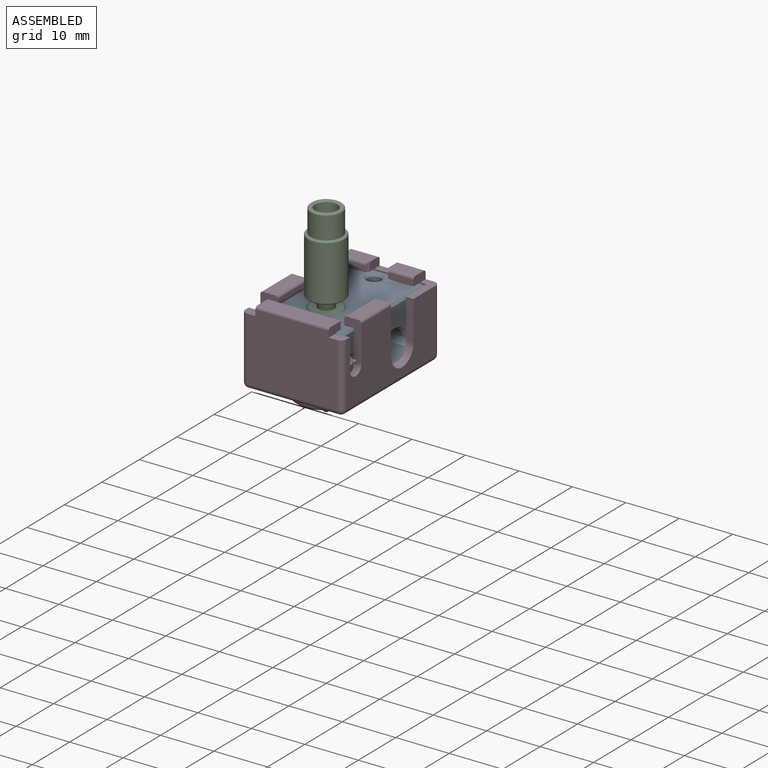
[diagram: assembled view]
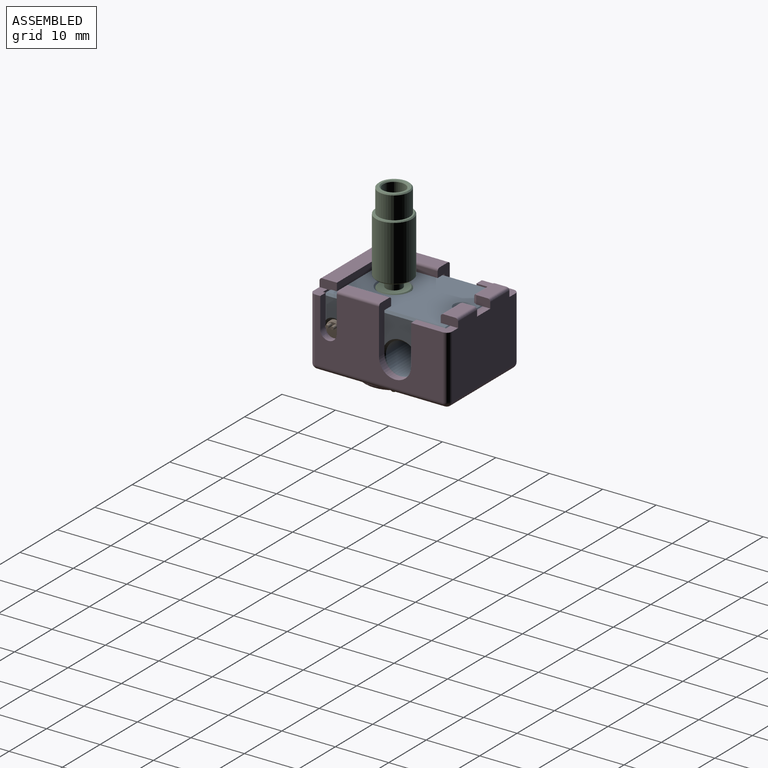
[diagram: assembled view, second angle]
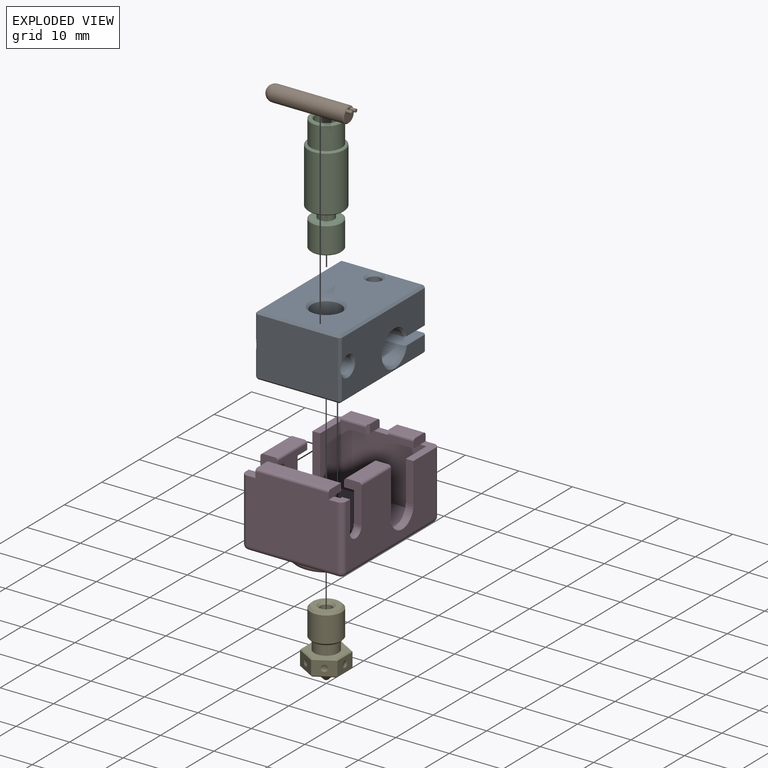
[diagram: exploded view]
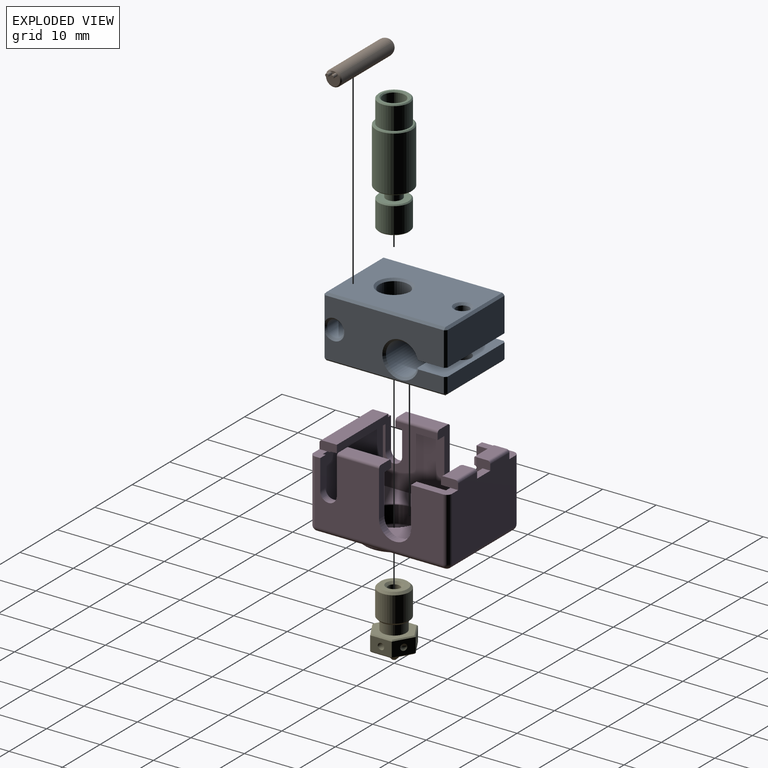
[diagram: exploded view, second angle]
ASSEMBLY  parts=5 mates=4
PART A: 46 faces, bbox 16x23x11.5 mm
  f0: cylinder r=1.55mm len=15.21mm, axis (-1,0,0), area 142.7mm2, adj f14,f22,f26
  f1: plane 16.02x5.64mm, normal (0,0,-1), area 84.9mm2, adj f2,f8,f9,f10,f12,f15,f17,f39
  f2: cylinder r=3mm len=15.21mm, axis (-1,0,0), area 262.9mm2, adj f1,f3,f39,f40
  f3: plane 16.02x5.62mm, normal (0,0,1), area 81.5mm2, adj f2,f4,f9,f10,f13,f32,f38,f39
  f4: plane 15.21x2.85mm, normal (0,-1,0), area 43.3mm2, adj f3,f32,f36,f38
  f5: plane 22.22x15.21mm, normal (0,0,-1), area 285.7mm2, adj f30,f31,f35,f36,f43,f44,f45
  f6: plane 15.21x10.74mm, normal (0,1,0), area 163.4mm2, adj f24,f25,f29,f30
  f7: plane 22.22x15.21mm, normal (0,0,1), area 298.2mm2, adj f18,f19,f23,f24,f41,f42
  f8: plane 15.21x6.34mm, normal (0,-1,0), area 96.4mm2, adj f1,f15,f17,f18
  f9: plane 22.22x10.74mm, normal (1,0,0), area 183.4mm2, adj f1,f3,f17,f23,f26,f29,f35,f38
  f10: plane 22.22x10.74mm, normal (-1,0,0), area 183.4mm2, adj f1,f3,f15,f19,f22,f25,f31,f32
  f11: cylinder r=2.75mm len=10.74mm, axis (0,0,-1), area 185.6mm2, adj f42,f45
  f12: cylinder r=1.25mm len=6.34mm, axis (0,0,-1), area 49.8mm2, adj f1,f41
  f13: cylinder r=1.6mm len=3.2mm, axis (0,0,-1), area 28.7mm2, adj f3,f44
  f14: cylinder r=1.25mm len=4.45mm, axis (0,0,-1), area 32.3mm2, adj f0,f43
  f15: plane 6.34x0.4mm, normal (-0.71,-0.71,0), area 3.6mm2, adj f1,f8,f10,f16
  f16: plane 0.4x0.4mm, normal (-0.58,-0.58,0.58), area 0.1mm2, adj f15,f18,f19
  f17: plane 6.34x0.4mm, normal (0.71,-0.71,0), area 3.6mm2, adj f1,f8,f9,f20
  f18: plane 15.21x0.4mm, normal (0,-0.71,0.71), area 8.6mm2, adj f7,f8,f16,f20
  f19: plane 22.22x0.4mm, normal (-0.71,0,0.71), area 12.6mm2, adj f7,f10,f16,f21
  f20: plane 0.4x0.4mm, normal (0.58,-0.58,0.58), area 0.1mm2, adj f17,f18,f23
  f21: plane 0.4x0.4mm, normal (-0.58,0.58,0.58), area 0.1mm2, adj f19,f24,f25
  f22: cone r=1.95mm half-angle=45deg, axis (-1,0,0), area 5.9mm2, adj f0,f10,f25
  f23: plane 22.22x0.4mm, normal (0.71,0,0.71), area 12.6mm2, adj f7,f9,f20,f27
  f24: plane 15.21x0.4mm, normal (0,0.71,0.71), area 8.6mm2, adj f6,f7,f21,f27
  f25: plane 10.74x0.4mm, normal (-0.71,0.71,0), area 5.8mm2, adj f6,f10,f21,f22,f28
  f26: cone r=1.55mm half-angle=45deg, axis (1,0,0), area 5.9mm2, adj f0,f9,f29
  f27: plane 0.4x0.4mm, normal (0.58,0.58,0.58), area 0.1mm2, adj f23,f24,f29
  f28: plane 0.4x0.4mm, normal (-0.58,0.58,-0.58), area 0.1mm2, adj f25,f30,f31
  f29: plane 10.74x0.4mm, normal (0.71,0.71,0), area 5.8mm2, adj f6,f9,f26,f27,f33
  f30: plane 15.21x0.4mm, normal (0,0.71,-0.71), area 8.6mm2, adj f5,f6,f28,f33
  f31: plane 22.22x0.4mm, normal (-0.71,0,-0.71), area 12.6mm2, adj f5,f10,f28,f34
  f32: plane 2.85x0.4mm, normal (-0.71,-0.71,0), area 1.6mm2, adj f3,f4,f10,f34
  f33: plane 0.4x0.4mm, normal (0.58,0.58,-0.58), area 0.1mm2, adj f29,f30,f35
  f34: plane 0.4x0.4mm, normal (-0.58,-0.58,-0.58), area 0.1mm2, adj f31,f32,f36
  f35: plane 22.22x0.4mm, normal (0.71,0,-0.71), area 12.6mm2, adj f5,f9,f33,f37
  f36: plane 15.21x0.4mm, normal (0,-0.71,-0.71), area 8.6mm2, adj f4,f5,f34,f37
  f37: plane 0.4x0.4mm, normal (0.58,-0.58,-0.58), area 0.1mm2, adj f35,f36,f38
  f38: plane 2.85x0.4mm, normal (0.71,-0.71,0), area 1.6mm2, adj f3,f4,f9,f37
  f39: cone r=3mm half-angle=45deg, axis (1,0,0), area 10.5mm2, adj f1,f2,f3,f9
  f40: cone r=3.4mm half-angle=45deg, axis (-1,0,0), area 10.5mm2, adj f1,f2,f3,f10
  f41: cone r=1.25mm half-angle=45deg, axis (0,0,1), area 5.2mm2, adj f7,f12
  f42: cone r=2.75mm half-angle=45deg, axis (0,0,1), area 10.5mm2, adj f7,f11
  f43: cone r=1.25mm half-angle=45deg, axis (0,0,-1), area 5.2mm2, adj f5,f14
  f44: cone r=1.6mm half-angle=45deg, axis (0,0,-1), area 6.4mm2, adj f5,f13
  f45: cone r=2.75mm half-angle=45deg, axis (0,0,-1), area 10.5mm2, adj f5,f11
PART B: 8 faces, bbox 3x3x16.3 mm
  f0: cylinder r=1.5mm len=13.6mm, axis (0,0,-1), area 128.2mm2, adj f2,f7
  f1: plane 2.6x2.6mm, normal (0,0,-1), area 4.7mm2, adj f3,f5,f7
  f2: sphere r=1.5mm, area 14.1mm2, adj f0
  f3: cylinder r=0.3mm len=1mm, axis (0,0,1), area 1.9mm2, adj f1,f4
  f4: plane 0.6x0.6mm, normal (0,0,-1), area 0.3mm2, adj f3
  f5: cylinder r=0.3mm len=1mm, axis (0,0,1), area 1.9mm2, adj f1,f6
  f6: plane 0.6x0.6mm, normal (0,0,-1), area 0.3mm2, adj f5
  f7: cone r=1.5mm half-angle=45deg, axis (0,0,1), area 2.5mm2, adj f0,f1
PART C: 18 faces, bbox 6.8x6.8x22.1 mm
  f0: cylinder r=1.05mm len=17.11mm, axis (0,0,1), area 112.9mm2, adj f8,f11
  f1: cylinder r=2.9mm len=5.8mm, axis (0,0,-1), area 76.7mm2, adj f4,f17
  f2: plane 5.4x5.4mm, normal (0,0,1), area 7mm2, adj f12,f17
  f3: cylinder r=3.4mm len=10.3mm, axis (0,0,-1), area 220mm2, adj f13,f14
  f4: plane 6.4x6.4mm, normal (0,0,1), area 5.7mm2, adj f1,f13
  f5: plane 6.4x6.4mm, normal (0,0,-1), area 25.1mm2, adj f7,f14
  f6: plane 5.4x5.4mm, normal (0,0,1), area 15.8mm2, adj f7,f16
  f7: cylinder r=1.5mm len=3mm, axis (0,0,-1), area 17mm2, adj f5,f6
  f8: plane 5.4x5.4mm, normal (0,0,-1), area 19.4mm2, adj f0,f15
  f9: cylinder r=2.9mm len=5.8mm, axis (0,0,-1), area 87.5mm2, adj f15,f16
  f10: cylinder r=2.05mm len=4.2mm, axis (0,0,1), area 54.1mm2, adj f11,f12
  f11: cone r=0mm half-angle=59deg, axis (0,0,1), area 11.4mm2, adj f0,f10
  f12: cone r=2.05mm half-angle=45deg, axis (0,0,1), area 3.8mm2, adj f2,f10
  f13: cone r=3.2mm half-angle=45deg, axis (0,0,-1), area 5.9mm2, adj f3,f4
  f14: cone r=3.4mm half-angle=45deg, axis (0,0,1), area 5.9mm2, adj f3,f5
  f15: cone r=2.9mm half-angle=45deg, axis (0,0,1), area 5mm2, adj f8,f9
  f16: cone r=2.7mm half-angle=45deg, axis (0,0,-1), area 5mm2, adj f6,f9
  f17: cone r=2.7mm half-angle=45deg, axis (0,0,-1), area 5mm2, adj f1,f2
PART D: 107 faces, bbox 18.9x25.9x17.7 mm
  f0: plane 6.97x2.6mm, normal (0,0,1), area 11.6mm2, adj f1,f7,f17,f26,f40,f49,f95
  f1: plane 23.92x12.94mm, normal (1,0,0), area 212.2mm2, adj f0,f13,f26,f32,f35,f37,f39,f92
  f2: plane 23.92x12.94mm, normal (-1,0,0), area 212.2mm2, adj f6,f14,f24,f28,f29,f36,f42,f88
  f3: plane 3.25x1.6mm, normal (-1,0,0), area 5mm2, adj f4,f14,f16,f18,f44,f96,f97,f105
  f4: plane 13.71x1.45mm, normal (0,1,0), area 19.9mm2, adj f3,f5,f18,f96
  f5: plane 3.25x1.6mm, normal (1,0,0), area 5mm2, adj f4,f13,f16,f18,f44,f96,f97,f105
  f6: plane 6.97x2.6mm, normal (0,0,1), area 11.6mm2, adj f2,f8,f17,f24,f41,f49,f91
  f7: plane 23.02x11.54mm, normal (-1,0,0), area 183.3mm2, adj f0,f13,f37,f39,f45,f48,f49,f51
  f8: plane 23.02x11.54mm, normal (1,0,0), area 183.3mm2, adj f6,f14,f36,f42,f47,f48,f49,f53
  f9: plane 4.75x1.1mm, normal (0,-1,0), area 5.2mm2, adj f40,f71,f79,f100
  f10: plane 2.64x1.6mm, normal (-1,0,0), area 4.2mm2, adj f15,f17,f22,f71,f79,f104
  f11: plane 2.64x1.6mm, normal (1,0,0), area 4.2mm2, adj f15,f17,f20,f46,f82,f98
  f12: plane 4.75x1.1mm, normal (0,-1,0), area 5.2mm2, adj f41,f46,f82,f101
  f13: plane 2.6x1.95mm, normal (0,0,1), area 4.3mm2, adj f1,f5,f7,f16,f35,f48,f93
  f14: plane 2.6x1.95mm, normal (0,0,1), area 4.3mm2, adj f2,f3,f8,f16,f29,f48,f89
  f15: plane 3.51x1.45mm, normal (0,0,1), area 5.1mm2, adj f10,f11,f17,f49
  f16: plane 16.91x12.94mm, normal (0,-1,0), area 215.3mm2, adj f3,f5,f13,f14,f29,f33,f35,f105
  f17: plane 16.91x12.94mm, normal (0,1,0), area 211.4mm2, adj f0,f6,f10,f11,f15,f24,f26,f27
  f18: plane 13.71x2.75mm, normal (0,0,1), area 37.7mm2, adj f3,f4,f5,f105
  f19: plane 7.9x2.25mm, normal (0,0,1), area 17.8mm2, adj f37,f39,f99,f106
  f20: plane 5.1x2.25mm, normal (0,0,1), area 11.5mm2, adj f11,f41,f82,f98,f101
  f21: plane 7.9x2.25mm, normal (0,0,1), area 17.8mm2, adj f36,f42,f102,f103
  f22: plane 5.1x2.25mm, normal (0,0,1), area 11.5mm2, adj f10,f40,f79,f100,f104
  f23: plane 23.92x16.91mm, normal (0,0,-1), area 227.9mm2, adj f27,f28,f32,f33,f73,f78
  f24: cylinder r=1mm len=11.84mm, axis (0,0,-1), area 18.6mm2, adj f2,f6,f17,f25
  f25: sphere r=1mm, area 1.6mm2, adj f24,f27,f28
  f26: cylinder r=1mm len=11.84mm, axis (0,0,1), area 18.6mm2, adj f0,f1,f17,f30
  f27: cylinder r=1mm len=16.91mm, axis (-1,0,0), area 26.6mm2, adj f17,f23,f25,f30
  f28: cylinder r=1mm len=23.92mm, axis (0,-1,0), area 37.6mm2, adj f2,f23,f25,f31
  f29: cylinder r=1mm len=11.84mm, axis (0,0,1), area 18.6mm2, adj f2,f14,f16,f31
  f30: sphere r=1mm, area 1.6mm2, adj f26,f27,f32
  f31: sphere r=1mm, area 1.6mm2, adj f28,f29,f33
  f32: cylinder r=1mm len=23.92mm, axis (0,1,0), area 37.6mm2, adj f1,f23,f30,f34
  f33: cylinder r=1mm len=16.91mm, axis (1,0,0), area 26.6mm2, adj f16,f23,f31,f34
  f34: sphere r=1mm, area 1.6mm2, adj f32,f33,f35
  f35: cylinder r=1mm len=11.84mm, axis (0,0,-1), area 18.6mm2, adj f1,f13,f16,f34
  f36: plane 7.22x3.25mm, normal (0,-1,0), area 13.2mm2, adj f2,f8,f21,f43,f47,f88,f102,f103
  f37: plane 7.22x3.25mm, normal (0,-1,0), area 13.2mm2, adj f1,f7,f19,f38,f45,f92,f99,f106
  f38: plane 7.9x1.1mm, normal (-1,0,0), area 8.7mm2, adj f37,f39,f45,f99
  f39: plane 8.99x3.25mm, normal (0,1,0), area 15.8mm2, adj f1,f7,f19,f38,f45,f94,f99,f106
  f40: plane 3.25x1.6mm, normal (1,0,0), area 5.1mm2, adj f0,f9,f17,f22,f71,f100,f104
  f41: plane 3.25x1.6mm, normal (-1,0,0), area 5.1mm2, adj f6,f12,f17,f20,f46,f98,f101
  f42: plane 8.99x3.25mm, normal (0,1,0), area 15.8mm2, adj f2,f8,f21,f43,f47,f90,f102,f103
  f43: plane 7.9x1.1mm, normal (1,0,0), area 8.7mm2, adj f36,f42,f47,f102
  f44: plane 13.71x0.5mm, normal (0,0,-1), area 3.1mm2, adj f3,f5,f48,f57,f58,f59,f97
  f45: plane 7.9x1.8mm, normal (0,0,-1), area 12.5mm2, adj f7,f37,f38,f39,f60,f61,f62
  f46: plane 5.1x1.8mm, normal (0,0,-1), area 8.3mm2, adj f11,f12,f41,f49,f66,f67,f68,f82
  f47: plane 7.9x1.8mm, normal (0,0,-1), area 12.5mm2, adj f8,f36,f42,f43,f56,f69,f70
  f48: plane 16.01x11.54mm, normal (0,1,0), area 184mm2, adj f7,f8,f13,f14,f44,f50,f55,f57
  f49: plane 16.01x11.54mm, normal (0,-1,0), area 183mm2, adj f0,f6,f7,f8,f15,f46,f52,f54
  f50: plane 10.81x0.35mm, normal (0,0,-1), area 3.8mm2, adj f48,f57,f58,f59
  f51: plane 5x0.35mm, normal (0,0,-1), area 1.7mm2, adj f7,f60,f61,f62
  f52: plane 2.2x0.35mm, normal (0,0,-1), area 0.8mm2, adj f49,f66,f67,f68
  f53: plane 5x0.35mm, normal (0,0,-1), area 1.8mm2, adj f8,f56,f69,f70
  f54: plane 2.2x0.35mm, normal (0,0,-1), area 0.8mm2, adj f49,f63,f64,f65
  f55: plane 23.02x16.01mm, normal (0,0,1), area 289mm2, adj f7,f8,f48,f49,f81,f86
  f56: plane 0.35x0.15mm, normal (0,1,0), area 0.1mm2, adj f8,f47,f53,f70
  f57: plane 0.35x0.15mm, normal (1,0,0), area 0.1mm2, adj f44,f48,f50,f58
  f58: plane 10.81x0.15mm, normal (0,-1,0), area 1.6mm2, adj f44,f50,f57,f59
  f59: plane 0.35x0.15mm, normal (-1,0,0), area 0.1mm2, adj f44,f48,f50,f58
  f60: plane 0.35x0.15mm, normal (0,1,0), area 0.1mm2, adj f7,f45,f51,f61
  f61: plane 5x0.15mm, normal (1,0,0), area 0.7mm2, adj f45,f51,f60,f62
  f62: plane 0.35x0.15mm, normal (0,-1,0), area 0.1mm2, adj f7,f45,f51,f61
  f63: plane 0.35x0.15mm, normal (-1,0,0), area 0.1mm2, adj f49,f54,f64,f71
  f64: plane 2.2x0.15mm, normal (0,1,0), area 0.3mm2, adj f54,f63,f65,f71
  f65: plane 0.35x0.15mm, normal (1,0,0), area 0.1mm2, adj f49,f54,f64,f71
  f66: plane 0.35x0.15mm, normal (-1,0,0), area 0.1mm2, adj f46,f49,f52,f67
  f67: plane 2.2x0.15mm, normal (0,1,0), area 0.3mm2, adj f46,f52,f66,f68
  f68: plane 0.35x0.15mm, normal (1,0,0), area 0.1mm2, adj f46,f49,f52,f67
  f69: plane 0.35x0.15mm, normal (0,-1,0), area 0.1mm2, adj f8,f47,f53,f70
  f70: plane 5x0.15mm, normal (-1,0,0), area 0.7mm2, adj f47,f53,f56,f69
  f71: plane 5.1x1.8mm, normal (0,0,-1), area 8.3mm2, adj f9,f10,f40,f49,f63,f64,f65,f79
  f72: plane 4.14x4.14mm, normal (0,0,-1), area 13.5mm2, adj f73
  f73: torus R=2.07mm, axis (0,0,-1), area 22.8mm2, adj f23,f72
  f74: cylinder r=5.85mm len=11.7mm, axis (0,0,1), area 15.6mm2, adj f77,f78
  f75: plane 1.41x1.41mm, normal (0,0,-1), area 0.8mm2, adj f76,f85
  f76: cone r=5.85mm half-angle=79deg, axis (0,0,1), area 79.7mm2, adj f75,f77
  f77: torus R=4.85mm, axis (0,0,-1), area 48.2mm2, adj f74,f76
  f78: torus R=6.85mm, axis (0,0,1), area 61.3mm2, adj f23,f74
  f79: cylinder r=2.25mm len=1.6mm, axis (0,0,-1), area 1.1mm2, adj f9,f10,f22,f71,f100
  f80: plane 4.5x4.5mm, normal (0,0,1), area 15.9mm2, adj f81
  f81: cylinder r=2.25mm len=4.5mm, axis (0,0,-1), area 20.5mm2, adj f55,f80
  f82: cylinder r=2.25mm len=1.6mm, axis (0,0,-1), area 1.1mm2, adj f11,f12,f20,f46,f101
  f83: cylinder r=4.3mm len=8.6mm, axis (0,0,1), area 85.1mm2, adj f86,f87
  f84: plane 8.2x8.2mm, normal (0,0,1), area 52mm2, adj f85,f87
  f85: cylinder r=0.5mm len=1.15mm, axis (0,0,1), area 3.6mm2, adj f75,f84
  f86: torus R=4.5mm, axis (0,0,1), area 8.6mm2, adj f55,f83
  f87: torus R=4.1mm, axis (0,0,1), area 8.3mm2, adj f83,f84
  f88: cylinder r=1.55mm len=3.1mm, axis (1,0,0), area 7.1mm2, adj f2,f8,f36,f89
  f89: plane 5.62x1.45mm, normal (0,1,0), area 8.1mm2, adj f2,f8,f14,f88
  f90: cylinder r=3mm len=6mm, axis (1,0,0), area 13.7mm2, adj f2,f8,f42,f91
  f91: plane 7.39x1.45mm, normal (0,-1,0), area 10.7mm2, adj f2,f6,f8,f90
  f92: cylinder r=1.55mm len=3.1mm, axis (1,0,0), area 7.1mm2, adj f1,f7,f37,f93
  f93: plane 5.62x1.45mm, normal (0,1,0), area 8.1mm2, adj f1,f7,f13,f92
  f94: cylinder r=3mm len=6mm, axis (1,0,0), area 13.7mm2, adj f1,f7,f39,f95
  f95: plane 7.39x1.45mm, normal (0,-1,0), area 10.7mm2, adj f0,f1,f7,f94
  f96: plane 13.71x0.94mm, normal (0,0,-1), area 12.9mm2, adj f3,f4,f5,f97
  f97: cylinder r=0.5mm len=13.71mm, axis (-1,0,0), area 5.5mm2, adj f3,f5,f44,f96
  f98: cylinder r=0.5mm len=5.1mm, axis (1,0,0), area 4mm2, adj f11,f17,f20,f41
  f99: cylinder r=0.5mm len=7.9mm, axis (0,-1,0), area 6.2mm2, adj f19,f37,f38,f39
  f100: cylinder r=0.5mm len=5.02mm, axis (1,0,0), area 3.8mm2, adj f9,f22,f40,f79
  f101: cylinder r=0.5mm len=5.02mm, axis (1,0,0), area 3.8mm2, adj f12,f20,f41,f82
  f102: cylinder r=0.5mm len=7.9mm, axis (0,1,0), area 6.2mm2, adj f21,f36,f42,f43
  f103: cylinder r=0.5mm len=7.9mm, axis (0,1,0), area 6.2mm2, adj f2,f21,f36,f42
  f104: cylinder r=0.5mm len=5.1mm, axis (1,0,0), area 4mm2, adj f10,f17,f22,f40
  f105: cylinder r=0.5mm len=13.71mm, axis (-1,0,0), area 10.8mm2, adj f3,f5,f16,f18
  f106: cylinder r=0.5mm len=7.9mm, axis (0,-1,0), area 6.2mm2, adj f1,f19,f37,f39
PART E: 38 faces, bbox 8.1x7.3x12.5 mm
  f0: cone r=0mm half-angle=59deg, axis (0,0,-1), area 4.3mm2, adj f27,f28
  f1: plane 3.5x2.7mm, normal (-0.87,0.5,0), area 9.8mm2, adj f2,f6,f15,f23,f37
  f2: plane 3.5x2.7mm, normal (-0.87,-0.5,0), area 9.8mm2, adj f1,f3,f17,f25,f36
  f3: plane 4.04x2.7mm, normal (0,-1,0), area 9.8mm2, adj f2,f4,f19,f26,f35
  f4: plane 3.5x2.7mm, normal (0.87,-0.5,0), area 9.8mm2, adj f3,f5,f20,f24,f34
  f5: plane 3.5x2.7mm, normal (0.87,0.5,0), area 9.8mm2, adj f4,f6,f18,f22,f33
  f6: plane 4.04x2.7mm, normal (0,1,0), area 9.8mm2, adj f1,f5,f16,f21,f32
  f7: plane 7.62x6.6mm, normal (0,0,1), area 21.8mm2, adj f14,f21,f22,f23,f24,f25,f26
  f8: plane 7.62x6.6mm, normal (0,0,-1), area 21.8mm2, adj f9,f15,f16,f17,f18,f19,f20
  f9: cylinder r=2.25mm len=4.5mm, axis (0,0,1), area 26.9mm2, adj f8,f10
  f10: plane 5x5mm, normal (0,0,1), area 3.7mm2, adj f9,f31
  f11: cylinder r=2.9mm len=5.8mm, axis (0,0,1), area 87.5mm2, adj f30,f31
  f12: plane 5x5mm, normal (0,0,-1), area 12.6mm2, adj f29,f30
  f13: plane 0.7x0.7mm, normal (0,0,1), area 0.3mm2, adj f14,f28
  f14: cone r=0.35mm half-angle=45deg, axis (0,0,-1), area 21.9mm2, adj f7,f13
  f15: plane 3.5x2.14mm, normal (-0.61,0.35,-0.71), area 1.1mm2, adj f1,f8,f16,f17
  f16: plane 4.04x0.2mm, normal (0,0.71,-0.71), area 1.1mm2, adj f6,f8,f15,f18
  f17: plane 3.5x2.14mm, normal (-0.61,-0.35,-0.71), area 1.1mm2, adj f2,f8,f15,f19
  f18: plane 3.5x2.14mm, normal (0.61,0.35,-0.71), area 1.1mm2, adj f5,f8,f16,f20
  f19: plane 4.04x0.2mm, normal (0,-0.71,-0.71), area 1.1mm2, adj f3,f8,f17,f20
  f20: plane 3.5x2.14mm, normal (0.61,-0.35,-0.71), area 1.1mm2, adj f4,f8,f18,f19
  f21: plane 4.04x0.2mm, normal (0,0.71,0.71), area 1.1mm2, adj f6,f7,f22,f23
  f22: plane 3.5x2.14mm, normal (0.61,0.35,0.71), area 1.1mm2, adj f5,f7,f21,f24
  f23: plane 3.5x2.14mm, normal (-0.61,0.35,0.71), area 1.1mm2, adj f1,f7,f21,f25
  f24: plane 3.5x2.14mm, normal (0.61,-0.35,0.71), area 1.1mm2, adj f4,f7,f22,f26
  f25: plane 3.5x2.14mm, normal (-0.61,-0.35,0.71), area 1.1mm2, adj f2,f7,f23,f26
  f26: plane 4.04x0.2mm, normal (0,-0.71,0.71), area 1.1mm2, adj f3,f7,f24,f25
  f27: cylinder r=1.1mm len=10.6mm, axis (0,0,-1), area 73.3mm2, adj f0,f29
  f28: cylinder r=0.2mm len=0.96mm, axis (0,0,-1), area 1.2mm2, adj f0,f13
  f29: cone r=1.1mm half-angle=45deg, axis (0,0,-1), area 4.6mm2, adj f12,f27
  f30: cone r=2.5mm half-angle=45deg, axis (0,0,1), area 9.6mm2, adj f11,f12
  f31: cone r=2.9mm half-angle=45deg, axis (0,0,-1), area 9.6mm2, adj f10,f11
  f32: sphere r=1mm, area 1.3mm2, adj f6
  f33: sphere r=1mm, area 1.3mm2, adj f5
  f34: sphere r=1mm, area 1.3mm2, adj f4
  f35: sphere r=1mm, area 1.3mm2, adj f3
  f36: sphere r=1mm, area 1.3mm2, adj f2
  f37: sphere r=1mm, area 1.3mm2, adj f1
PLACE A rot(axis=(0,0,1),180deg) t=(0,3.81,11.93)mm
PLACE B rot(axis=(-0.58,-0.58,0.58),120deg) t=(8.2,-5.65,11.93)mm
PLACE C t=(0,0,12.5)mm
PLACE D rot(axis=(0,0,-1),0deg) t=(0,3.81,4.91)mm
PLACE E rot(axis=(0.71,-0.71,0),180deg) t=(0,0,5)mm
MATE fastened A.f11 <-> C.f0  axis (0,0,1) through (0,0,17.7)mm
MATE fastened E.f0 <-> C.f0  axis (0,0,1) through (0,0,12.5)mm
MATE fastened D.f74 <-> A.f11  axis (0,0,1) through (0,0,6.16)mm
MATE fastened B.f0 <-> A.f0  axis (-1,0,0) through (8,-5.65,11.93)mm
